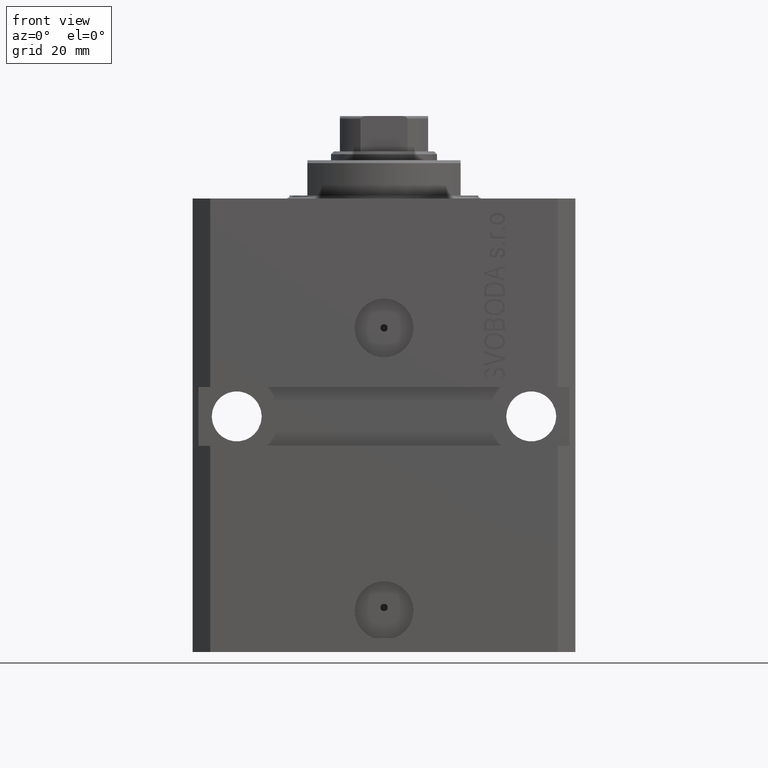
[diagram: clean part render]
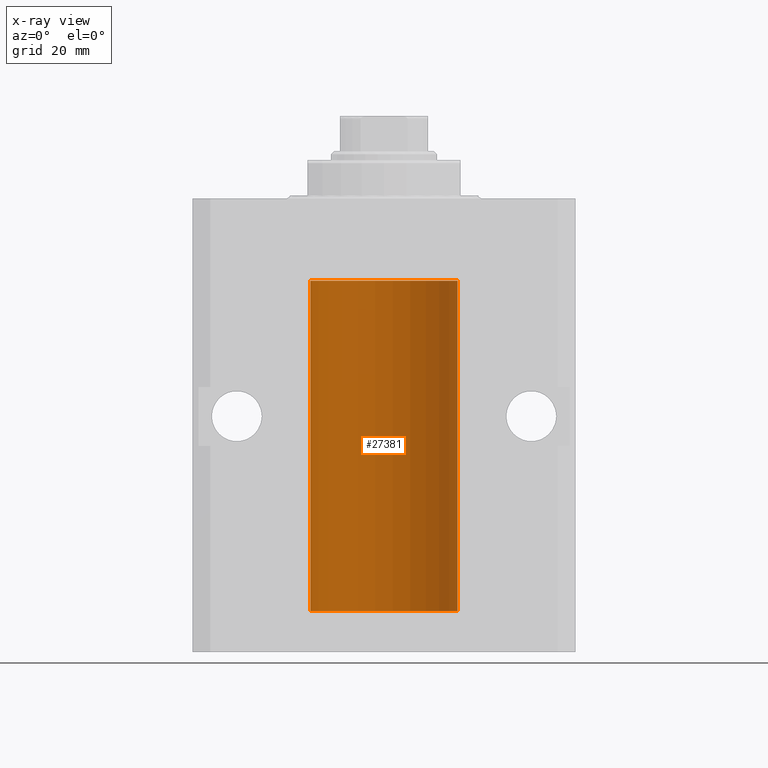
[diagram: x-ray — body ghosted, one internal face saturated and labeled with its STEP entity id]
A machine part, front view, then the same camera in x-ray: the body is ghosted and one INTERNAL B-rep face — a face not visible from any outside direction — is saturated and labeled: STEP entity #27381.
In plain terms, the highlighted cylindrical surface (partial cylindrical patch) has radius 12.5 mm, axis along (0, 0, 1).
Its self-contained STEP definition (entity closure, byte-faithful):
#123 = DIRECTION ( 'NONE',  ( 0.000000000000000000, 0.000000000000000000, 1.000000000000000000 ) ) ;
#861 = CARTESIAN_POINT ( 'NONE',  ( 0.000000000000000000, 0.000000000000000000, -13.99999999999999822 ) ) ;
#871 = VECTOR ( 'NONE', #29762, 1000.000000000000000 ) ;
#2901 = DIRECTION ( 'NONE',  ( -0.000000000000000000, -0.000000000000000000, 1.000000000000000000 ) ) ;
#2941 = VERTEX_POINT ( 'NONE', #43301 ) ;
#3007 = CIRCLE ( 'NONE', #18233, 12.50000000000000000 ) ;
#4647 = CARTESIAN_POINT ( 'NONE',  ( -12.50000000000000000, -1.053276923642966949E-14, -64.37500000000000000 ) ) ;
#4884 = CARTESIAN_POINT ( 'NONE',  ( -12.49625855304193500, 0.3150454781038046770, -64.45402800297485157 ) ) ;
#4891 = CARTESIAN_POINT ( 'NONE',  ( -12.49011732893843529, 0.5003763274120274218, -22.38348111289287701 ) ) ;
#5565 = CARTESIAN_POINT ( 'NONE',  ( -12.50000000000017941, 3.883381646606358354E-13, -22.62500000000358824 ) ) ;
#6597 = ORIENTED_EDGE ( 'NONE', *, *, #45044, .F. ) ;
#7475 = CARTESIAN_POINT ( 'NONE',  ( -12.50000000000000000, 1.530808498934191521E-15, -13.99999999999999822 ) ) ;
#7612 = LINE ( 'NONE', #33128, #38127 ) ;
#7884 = ORIENTED_EDGE ( 'NONE', *, *, #19913, .T. ) ;
#8000 = CARTESIAN_POINT ( 'NONE',  ( -12.49631005746706514, 0.3253680783018499389, -65.55856740465391397 ) ) ;
#8238 = CARTESIAN_POINT ( 'NONE',  ( -12.50000000000000000, 0.08260426088729219685, -21.37500000000000000 ) ) ;
#8471 = CARTESIAN_POINT ( 'NONE',  ( -12.49422197749724006, 0.3843754434364375916, -21.50047099568095277 ) ) ;
#8842 = CARTESIAN_POINT ( 'NONE',  ( -12.50000000000000000, 1.530808498934191521E-15, -70.09999999999999432 ) ) ;
#8995 = ORIENTED_EDGE ( 'NONE', *, *, #18519, .T. ) ;
#9176 = CARTESIAN_POINT ( 'NONE',  ( -12.50000000000017941, 3.883381646606358354E-13, -22.62500000000358824 ) ) ;
#9521 = CYLINDRICAL_SURFACE ( 'NONE', #22965, 12.50000000000000000 ) ;
#10116 = CARTESIAN_POINT ( 'NONE',  ( -12.50000000000000000, -2.089494013101375120E-17, -21.37499999999999645 ) ) ;
#11574 = CARTESIAN_POINT ( 'NONE',  ( -12.49422197749724361, 0.3843754434364307082, -64.50047099568097053 ) ) ;
#12035 = CARTESIAN_POINT ( 'NONE',  ( -12.48436376893640265, 0.6250290278979918623, -65.08132082824472775 ) ) ;
#13679 = CARTESIAN_POINT ( 'NONE',  ( -12.50000000000017941, 3.883381774819353300E-13, -65.62500000000359535 ) ) ;
#14172 = CARTESIAN_POINT ( 'NONE',  ( 12.50000000000000000, 0.000000000000000000, -13.99999999999999822 ) ) ;
#14322 = CIRCLE ( 'NONE', #37195, 12.50000000000000000 ) ;
#14528 = EDGE_CURVE ( 'NONE', #45070, #18762, #14322, .T. ) ;
#15221 = CARTESIAN_POINT ( 'NONE',  ( 12.50000000000000000, 0.000000000000000000, -70.09999999999999432 ) ) ;
#15833 = CARTESIAN_POINT ( 'NONE',  ( -12.50000000000017941, 3.883381774819353300E-13, -65.62500000000359535 ) ) ;
#17627 = LINE ( 'NONE', #29292, #871 ) ;
#17672 = LINE ( 'NONE', #24588, #36496 ) ;
#18233 = AXIS2_PLACEMENT_3D ( 'NONE', #861, #31525, #46076 ) ;
#18519 = EDGE_CURVE ( 'NONE', #24860, #39310, #3007, .T. ) ;
#18762 = VERTEX_POINT ( 'NONE', #8842 ) ;
#19409 = CARTESIAN_POINT ( 'NONE',  ( -12.49631005746706336, 0.3253680783018528255, -22.55856740465392463 ) ) ;
#19913 = EDGE_CURVE ( 'NONE', #39205, #21266, #46771, .T. ) ;
#20460 = CARTESIAN_POINT ( 'NONE',  ( 0.000000000000000000, 0.000000000000000000, -70.09999999999999432 ) ) ;
#21266 = VERTEX_POINT ( 'NONE', #5565 ) ;
#22515 = CARTESIAN_POINT ( 'NONE',  ( -12.49999999999999822, 0.1631761135151225950, -65.62499999999985789 ) ) ;
#22608 = DIRECTION ( 'NONE',  ( -0.000000000000000000, -0.000000000000000000, 1.000000000000000000 ) ) ;
#22756 = CARTESIAN_POINT ( 'NONE',  ( -12.48810268015257563, 0.5573155909661349217, -21.67347410093867666 ) ) ;
#22912 = LINE ( 'NONE', #37498, #32851 ) ;
#22965 = AXIS2_PLACEMENT_3D ( 'NONE', #20460, #23779, #42168 ) ;
#23106 = ORIENTED_EDGE ( 'NONE', *, *, #39483, .T. ) ;
#23215 = CARTESIAN_POINT ( 'NONE',  ( -12.49999999999999645, 0.08260426088728485550, -64.37499999999998579 ) ) ;
#23379 = EDGE_CURVE ( 'NONE', #2941, #33447, #35684, .T. ) ;
#23536 = ORIENTED_EDGE ( 'NONE', *, *, #26137, .F. ) ;
#23779 = DIRECTION ( 'NONE',  ( -0.000000000000000000, -0.000000000000000000, 1.000000000000000000 ) ) ;
#24588 = CARTESIAN_POINT ( 'NONE',  ( 12.50000000000000000, 0.000000000000000000, -70.09999999999999432 ) ) ;
#24860 = VERTEX_POINT ( 'NONE', #14172 ) ;
#26137 = EDGE_CURVE ( 'NONE', #18762, #33447, #22912, .T. ) ;
#26569 = CARTESIAN_POINT ( 'NONE',  ( -12.48809959379011580, 0.5462151254764966435, -65.31461370481613926 ) ) ;
#26810 = CARTESIAN_POINT ( 'NONE',  ( -12.49915784441386890, 0.1636601911727947889, -21.39126818989430490 ) ) ;
#27044 = CARTESIAN_POINT ( 'NONE',  ( -12.49999999999999289, 0.1631761135151241215, -22.62499999999984013 ) ) ;
#27381 = ADVANCED_FACE ( 'NONE', ( #42204 ), #9521, .F. ) ;
#29190 = EDGE_LOOP ( 'NONE', ( #23536, #34620, #23106, #8995, #6597, #7884, #34118, #41391 ) ) ;
#29292 = CARTESIAN_POINT ( 'NONE',  ( -12.50000000000000000, 1.530808498934191521E-15, -70.09999999999999432 ) ) ;
#29762 = DIRECTION ( 'NONE',  ( -0.000000000000000000, -0.000000000000000000, 1.000000000000000000 ) ) ;
#30139 = CARTESIAN_POINT ( 'NONE',  ( -12.49915784441386890, 0.1636601911727943726, -64.39126818989430490 ) ) ;
#30145 = CARTESIAN_POINT ( 'NONE',  ( -12.48436376893640443, 0.6250290278979917513, -22.08132082824473486 ) ) ;
#30375 = CARTESIAN_POINT ( 'NONE',  ( -12.48520330846397819, 0.6088355886774127201, -22.16325431852561323 ) ) ;
#31525 = DIRECTION ( 'NONE',  ( 0.000000000000000000, 0.000000000000000000, 1.000000000000000000 ) ) ;
#32795 = CARTESIAN_POINT ( 'NONE',  ( 0.000000000000000000, 0.000000000000000000, -70.09999999999999432 ) ) ;
#32851 = VECTOR ( 'NONE', #40606, 1000.000000000000000 ) ;
#33128 = CARTESIAN_POINT ( 'NONE',  ( -12.50000000000000000, 1.530808498934191521E-15, -70.09999999999999432 ) ) ;
#33447 = VERTEX_POINT ( 'NONE', #13679 ) ;
#34118 = ORIENTED_EDGE ( 'NONE', *, *, #41773, .F. ) ;
#34202 = CARTESIAN_POINT ( 'NONE',  ( -12.48810268015257741, 0.5573155909661293705, -64.67347410093867666 ) ) ;
#34620 = ORIENTED_EDGE ( 'NONE', *, *, #14528, .F. ) ;
#35684 = B_SPLINE_CURVE_WITH_KNOTS ( 'NONE', 3,
 ( #4647, #23215, #30139, #4884, #11574, #34202, #44705, #12035, #40676, #26569, #41136, #8000, #22515, #15833 ),
 .UNSPECIFIED., .F., .F.,
 ( 4, 2, 2, 2, 2, 2, 4 ),
 ( 3.492495172846855184E-18, 0.0002442924852390798859, 0.0004885849704781563023, 0.0009771699409563386254, 0.001221462426195450658, 0.001465754911434562473, 0.001954339881912786538 ),
 .UNSPECIFIED. ) ;
#36496 = VECTOR ( 'NONE', #2901, 1000.000000000000000 ) ;
#37195 = AXIS2_PLACEMENT_3D ( 'NONE', #32795, #123, #43771 ) ;
#37498 = CARTESIAN_POINT ( 'NONE',  ( -12.50000000000000000, 1.530808498934191521E-15, -70.09999999999999432 ) ) ;
#37577 = CARTESIAN_POINT ( 'NONE',  ( -12.48436813453758454, 0.6249418250771192618, -21.83668996798922635 ) ) ;
#38127 = VECTOR ( 'NONE', #22608, 1000.000000000000000 ) ;
#39205 = VERTEX_POINT ( 'NONE', #10116 ) ;
#39310 = VERTEX_POINT ( 'NONE', #7475 ) ;
#39483 = EDGE_CURVE ( 'NONE', #45070, #24860, #17672, .T. ) ;
#40606 = DIRECTION ( 'NONE',  ( -0.000000000000000000, -0.000000000000000000, 1.000000000000000000 ) ) ;
#40676 = CARTESIAN_POINT ( 'NONE',  ( -12.48520330846398174, 0.6088355886774118320, -65.16325431852561678 ) ) ;
#40909 = CARTESIAN_POINT ( 'NONE',  ( -12.50000000000000000, -2.089494013101375120E-17, -21.37499999999999645 ) ) ;
#41136 = CARTESIAN_POINT ( 'NONE',  ( -12.49011732893843885, 0.5003763274120245352, -65.38348111289289477 ) ) ;
#41382 = CARTESIAN_POINT ( 'NONE',  ( -12.49625855304193678, 0.3150454781038042329, -21.45402800297484802 ) ) ;
#41391 = ORIENTED_EDGE ( 'NONE', *, *, #23379, .T. ) ;
#41773 = EDGE_CURVE ( 'NONE', #2941, #21266, #7612, .T. ) ;
#42168 = DIRECTION ( 'NONE',  ( 1.000000000000000000, 0.000000000000000000, 0.000000000000000000 ) ) ;
#42204 = FACE_OUTER_BOUND ( 'NONE', #29190, .T. ) ;
#43301 = CARTESIAN_POINT ( 'NONE',  ( -12.50000000000000000, -1.053276923642966949E-14, -64.37500000000000000 ) ) ;
#43771 = DIRECTION ( 'NONE',  ( 1.000000000000000000, 0.000000000000000000, 0.000000000000000000 ) ) ;
#44705 = CARTESIAN_POINT ( 'NONE',  ( -12.48436813453758809, 0.6249418250771181516, -64.83668996798922990 ) ) ;
#44713 = CARTESIAN_POINT ( 'NONE',  ( -12.48809959379011403, 0.5462151254764975317, -22.31461370481611795 ) ) ;
#45044 = EDGE_CURVE ( 'NONE', #39205, #39310, #17627, .T. ) ;
#45070 = VERTEX_POINT ( 'NONE', #15221 ) ;
#46076 = DIRECTION ( 'NONE',  ( 1.000000000000000000, 0.000000000000000000, 0.000000000000000000 ) ) ;
#46771 = B_SPLINE_CURVE_WITH_KNOTS ( 'NONE', 3,
 ( #40909, #8238, #26810, #41382, #8471, #22756, #37577, #30145, #30375, #44713, #4891, #19409, #27044, #9176 ),
 .UNSPECIFIED., .F., .F.,
 ( 4, 2, 2, 2, 2, 2, 4 ),
 ( 2.030551168097110502E-20, 0.0002442924852390969078, 0.0004885849704781938157, 0.0009771699409563880650, 0.001221462426195485135, 0.001465754911434582423, 0.001954339881912776130 ),
 .UNSPECIFIED. ) ;